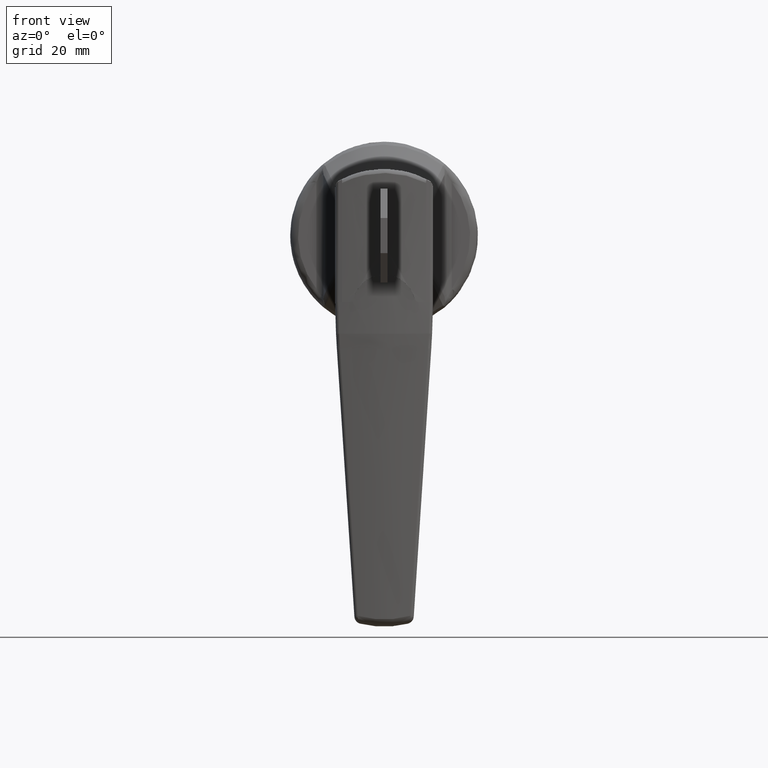
[diagram: clean part render]
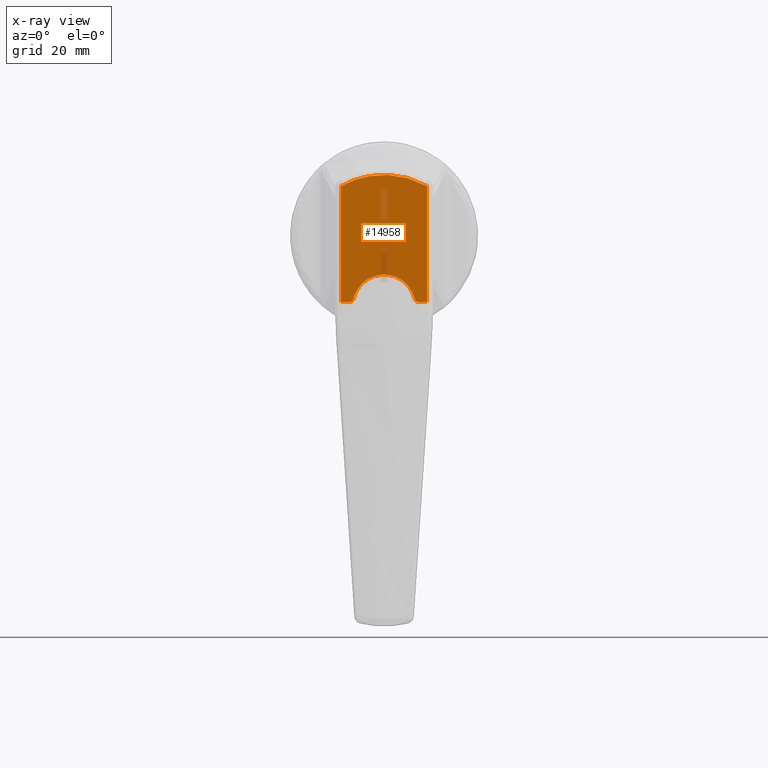
[diagram: x-ray — body ghosted, one internal face saturated and labeled with its STEP entity id]
A machine part, front view, then the same camera in x-ray: the body is ghosted and one INTERNAL B-rep face — a face not visible from any outside direction — is saturated and labeled: STEP entity #14958.
In plain terms, the highlighted face is a freeform B-spline surface patch.
Its self-contained STEP definition (entity closure, byte-faithful):
#14803=CARTESIAN_POINT('',(-41.299999999999997,-11.0,12.627786426390699));
#14804=VERTEX_POINT('',#14803);
#14810=CARTESIAN_POINT('',(-41.299999999999997,11.0,12.627786426390699));
#14811=VERTEX_POINT('',#14810);
#14812=CARTESIAN_POINT('',(-41.299999999999997,-10.999999999999989,12.627786426390699));
#14813=CARTESIAN_POINT('',(-41.300000000000004,3.918334E-015,18.792516231953964));
#14814=CARTESIAN_POINT('',(-41.299999999999997,11.0,12.627786426390699));
#14822=(BOUNDED_CURVE()B_SPLINE_CURVE(2,(#14812,#14813,#14814),.UNSPECIFIED.,.F.,.U.)CURVE()GEOMETRIC_REPRESENTATION_ITEM()QUASI_UNIFORM_CURVE()RATIONAL_B_SPLINE_CURVE((1.0,0.872346063395135,1.0))REPRESENTATION_ITEM(''));
#14823=EDGE_CURVE('',#14804,#14811,#14822,.T.);
#14838=CARTESIAN_POINT('',(-41.299999999999997,-11.0,-17.0));
#14839=VERTEX_POINT('',#14838);
#14840=CARTESIAN_POINT('',(-41.299999999999997,-11.0,12.627786426390699));
#14841=CARTESIAN_POINT('',(-41.299999999999997,-11.0,-17.0));
#14842=QUASI_UNIFORM_CURVE('',1,(#14840,#14841),.UNSPECIFIED.,.F.,.U.);
#14843=EDGE_CURVE('',#14804,#14839,#14842,.T.);
#14874=CARTESIAN_POINT('',(-41.299999999999997,11.0,-17.0));
#14875=VERTEX_POINT('',#14874);
#14876=CARTESIAN_POINT('',(-41.299999999999997,11.0,-17.0));
#14877=CARTESIAN_POINT('',(-41.299999999999997,11.0,12.627786426390699));
#14878=QUASI_UNIFORM_CURVE('',1,(#14876,#14877),.UNSPECIFIED.,.F.,.U.);
#14879=EDGE_CURVE('',#14875,#14811,#14878,.T.);
#14889=CARTESIAN_POINT('',(-41.299999999999997,12.098899957359730,17.123374937008801));
#14890=CARTESIAN_POINT('',(-41.299999999999997,-12.098900547445711,17.123374937008801));
#14891=CARTESIAN_POINT('',(-41.299999999999997,12.098899957359730,-18.623375808726632));
#14892=CARTESIAN_POINT('',(-41.299999999999997,-12.098900547445711,-18.623375808726632));
#14893=B_SPLINE_SURFACE_WITH_KNOTS('',1,1,((#14889,#14891),(#14890,#14892)),.UNSPECIFIED.,.F.,.F.,.U.,(2,2),(2,2),(0.0,24.197800504805439),(0.0,35.746750745735433),.UNSPECIFIED.);
#14894=ORIENTED_EDGE('',*,*,#14879,.T.);
#14895=ORIENTED_EDGE('',*,*,#14823,.F.);
#14896=ORIENTED_EDGE('',*,*,#14843,.T.);
#14897=CARTESIAN_POINT('',(-41.299999999999997,-8.774963999999999,-17.0));
#14898=VERTEX_POINT('',#14897);
#14899=CARTESIAN_POINT('',(-41.299999999999997,-8.774963999999999,-17.0));
#14900=CARTESIAN_POINT('',(-41.299999999999997,-11.0,-17.0));
#14901=QUASI_UNIFORM_CURVE('',1,(#14899,#14900),.UNSPECIFIED.,.F.,.U.);
#14902=EDGE_CURVE('',#14898,#14839,#14901,.T.);
#14903=ORIENTED_EDGE('',*,*,#14902,.F.);
#14904=CARTESIAN_POINT('',(-41.299999999999997,-7.799967988865900,-16.222222362224350));
#14905=VERTEX_POINT('',#14904);
#14906=CARTESIAN_POINT('',(-41.299999999999997,-7.799967988865888,-16.222222362224350));
#14907=CARTESIAN_POINT('',(-41.300000000000004,-7.977240082267310,-17.0));
#14908=CARTESIAN_POINT('',(-41.299999999999997,-8.774963999999999,-17.0));
#14916=(BOUNDED_CURVE()B_SPLINE_CURVE(2,(#14906,#14907,#14908),.UNSPECIFIED.,.F.,.U.)CURVE()GEOMETRIC_REPRESENTATION_ITEM()QUASI_UNIFORM_CURVE()RATIONAL_B_SPLINE_CURVE((1.0,0.781736004743402,1.0))REPRESENTATION_ITEM(''));
#14917=EDGE_CURVE('',#14905,#14898,#14916,.T.);
#14918=ORIENTED_EDGE('',*,*,#14917,.F.);
#14919=CARTESIAN_POINT('',(-41.299999999999997,7.799968323486359,-16.222222130689399));
#14920=VERTEX_POINT('',#14919);
#14921=CARTESIAN_POINT('',(-41.299999999999997,-7.799967988865900,-16.222222362224350));
#14922=CARTESIAN_POINT('',(-41.300000000000004,-6.381792342552138,-10.000000060381650));
#14923=CARTESIAN_POINT('',(-41.299999999999997,-0.000000075692779,-9.999999999999700));
#14924=CARTESIAN_POINT('',(-41.300000000000004,6.381792191166580,-9.999999939617752));
#14925=CARTESIAN_POINT('',(-41.299999999999997,7.799968323486354,-16.222222130689399));
#14933=(BOUNDED_CURVE()B_SPLINE_CURVE(2,(#14921,#14922,#14923,#14924,#14925),.UNSPECIFIED.,.F.,.U.)B_SPLINE_CURVE_WITH_KNOTS((3,2,3),(0.0,0.500000000000000,1.0),.UNSPECIFIED.)CURVE()GEOMETRIC_REPRESENTATION_ITEM()RATIONAL_B_SPLINE_CURVE((1.0,0.781735960679425,1.0,0.781735960679425,1.0))REPRESENTATION_ITEM(''));
#14934=EDGE_CURVE('',#14905,#14920,#14933,.T.);
#14935=ORIENTED_EDGE('',*,*,#14934,.T.);
#14936=CARTESIAN_POINT('',(-41.299999999999997,8.774963999999999,-17.0));
#14937=VERTEX_POINT('',#14936);
#14938=CARTESIAN_POINT('',(-41.299999999999997,8.774963999999999,-17.0));
#14939=CARTESIAN_POINT('',(-41.300000000000004,7.977239958406403,-17.0));
#14940=CARTESIAN_POINT('',(-41.299999999999997,7.799968323486359,-16.222222130689399));
#14948=(BOUNDED_CURVE()B_SPLINE_CURVE(2,(#14938,#14939,#14940),.UNSPECIFIED.,.F.,.U.)CURVE()GEOMETRIC_REPRESENTATION_ITEM()QUASI_UNIFORM_CURVE()RATIONAL_B_SPLINE_CURVE((1.0,0.781735957540662,1.0))REPRESENTATION_ITEM(''));
#14949=EDGE_CURVE('',#14937,#14920,#14948,.T.);
#14950=ORIENTED_EDGE('',*,*,#14949,.F.);
#14951=CARTESIAN_POINT('',(-41.299999999999997,11.0,-17.0));
#14952=CARTESIAN_POINT('',(-41.299999999999997,8.774963999999999,-17.0));
#14953=QUASI_UNIFORM_CURVE('',1,(#14951,#14952),.UNSPECIFIED.,.F.,.U.);
#14954=EDGE_CURVE('',#14875,#14937,#14953,.T.);
#14955=ORIENTED_EDGE('',*,*,#14954,.F.);
#14956=EDGE_LOOP('',(#14894,#14895,#14896,#14903,#14918,#14935,#14950,#14955));
#14957=FACE_OUTER_BOUND('',#14956,.T.);
#14958=ADVANCED_FACE('',(#14957),#14893,.T.);